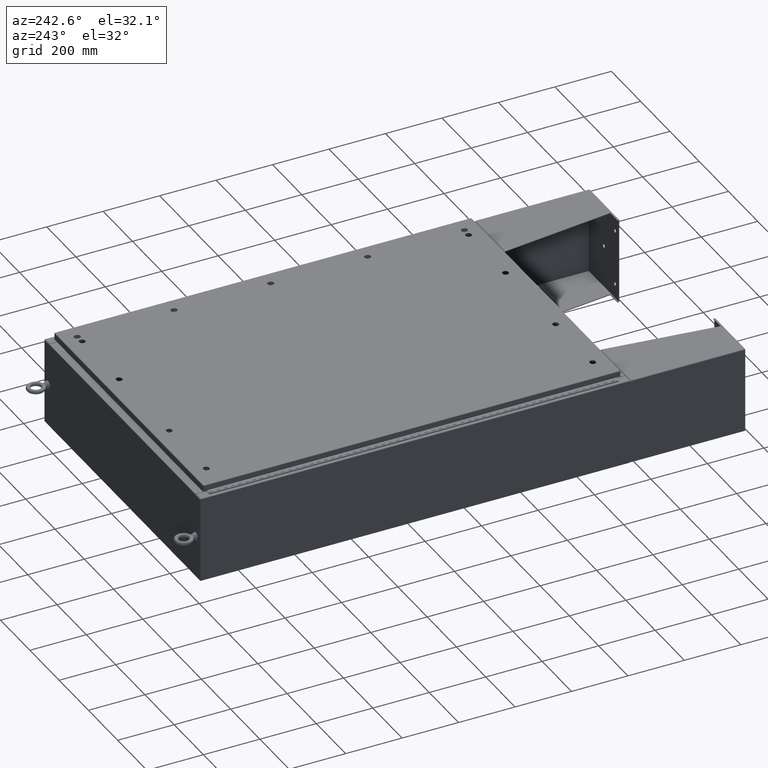
[diagram: clean part render]
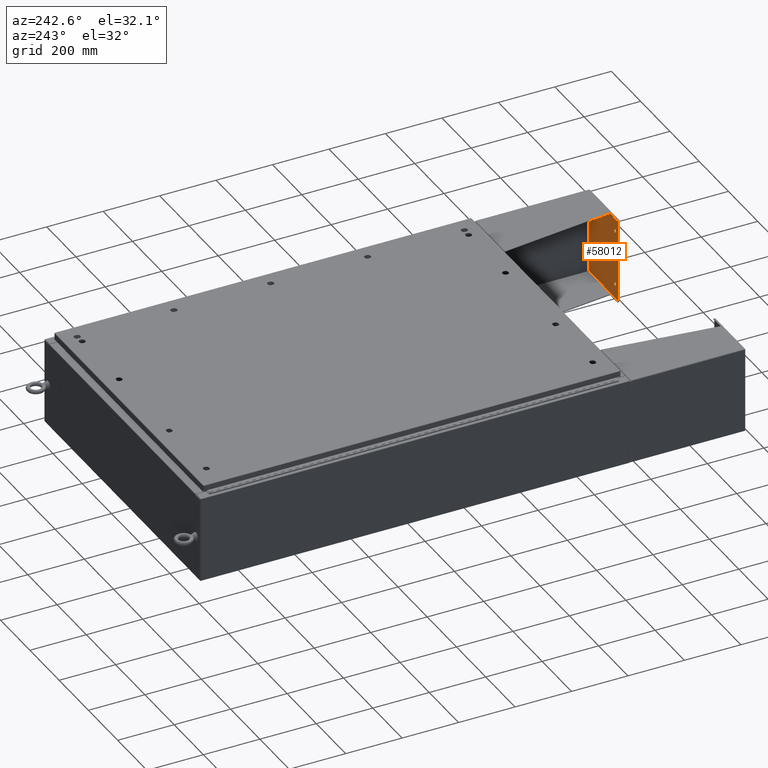
[diagram: same view with one face highlighted and labeled with its STEP entity id]
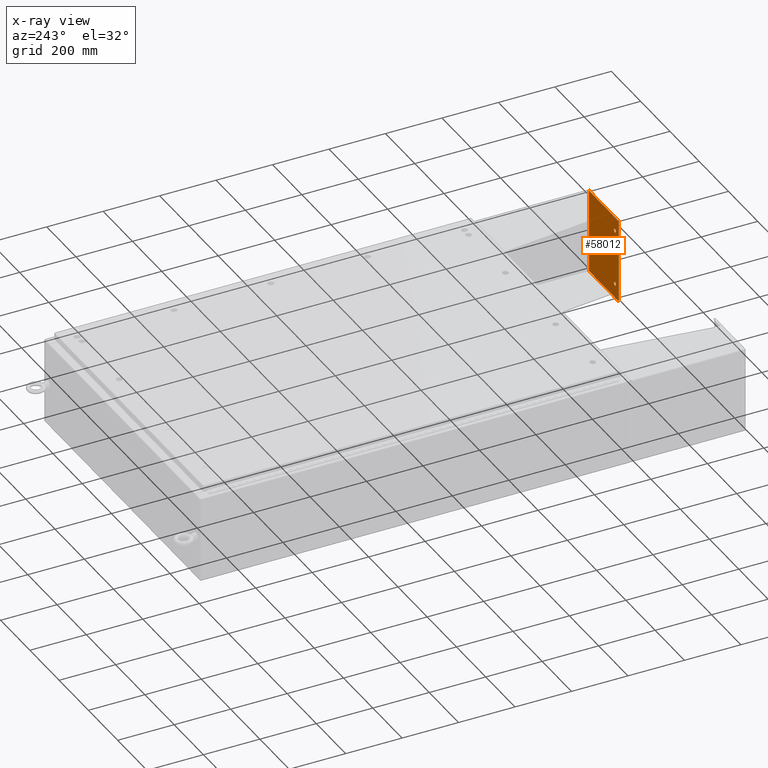
[diagram: x-ray of the same camera — body ghosted, the highlighted face saturated]
A machine part, auxiliary view. The second image highlights one B-rep face of the part: STEP entity #58012.
The next image is the same camera in x-ray: the body ghosted, the highlighted face saturated — about 0% of this face is hidden behind the body in this view.
In plain terms, the highlighted planar face has unit normal (0, -1, 0).
Its self-contained STEP definition (entity closure, byte-faithful):
#577 = DIRECTION ( 'NONE',  ( -1.000000000000000000, -0.0000000000000000000, -0.0000000000000000000 ) ) ;
#1028 = DIRECTION ( 'NONE',  ( 1.000000000000000000, 0.0000000000000000000, 0.0000000000000000000 ) ) ;
#1836 = ORIENTED_EDGE ( 'NONE', *, *, #38341, .T. ) ;
#2141 = ORIENTED_EDGE ( 'NONE', *, *, #55813, .T. ) ;
#4007 = DIRECTION ( 'NONE',  ( 1.000000000000000000, 0.0000000000000000000, 0.0000000000000000000 ) ) ;
#4290 = CARTESIAN_POINT ( 'NONE',  ( 5.878999999999997800, 4.000000000000000000, 0.0000000000000000000 ) ) ;
#5529 = CIRCLE ( 'NONE', #34900, 0.2499999999999998100 ) ;
#6895 = ORIENTED_EDGE ( 'NONE', *, *, #41651, .T. ) ;
#6958 = FACE_BOUND ( 'NONE', #14858, .T. ) ;
#7029 = DIRECTION ( 'NONE',  ( -0.0000000000000000000, -0.0000000000000000000, -1.000000000000000000 ) ) ;
#7469 = VECTOR ( 'NONE', #577, 39.37007874015748100 ) ;
#8609 = ORIENTED_EDGE ( 'NONE', *, *, #36759, .F. ) ;
#8724 = VECTOR ( 'NONE', #51157, 39.37007874015748100 ) ;
#9634 = DIRECTION ( 'NONE',  ( 1.000000000000000000, 0.0000000000000000000, 0.0000000000000000000 ) ) ;
#9685 = EDGE_LOOP ( 'NONE', ( #2141, #1836, #24955, #6895 ) ) ;
#10076 = CARTESIAN_POINT ( 'NONE',  ( -5.879000000000000400, 4.000000000000000000, 0.0000000000000000000 ) ) ;
#11567 = CARTESIAN_POINT ( 'NONE',  ( -5.879000000000000400, 4.000000000000000000, 0.0000000000000000000 ) ) ;
#11807 = VERTEX_POINT ( 'NONE', #55497 ) ;
#12425 = AXIS2_PLACEMENT_3D ( 'NONE', #27448, #33040, #24715 ) ;
#12438 = ORIENTED_EDGE ( 'NONE', *, *, #16672, .F. ) ;
#12812 = VERTEX_POINT ( 'NONE', #60976 ) ;
#13379 = CIRCLE ( 'NONE', #57759, 0.2500000000000000000 ) ;
#14085 = DIRECTION ( 'NONE',  ( -1.000000000000000000, 0.0000000000000000000, -0.0000000000000000000 ) ) ;
#14745 = CARTESIAN_POINT ( 'NONE',  ( -5.879000000000000400, -4.000000000000000000, 0.0000000000000000000 ) ) ;
#14799 = DIRECTION ( 'NONE',  ( 0.0000000000000000000, 0.0000000000000000000, 1.000000000000000000 ) ) ;
#14858 = EDGE_LOOP ( 'NONE', ( #8609, #23107 ) ) ;
#15485 = CARTESIAN_POINT ( 'NONE',  ( -3.879000000000000400, -2.999999999999999600, 0.0000000000000000000 ) ) ;
#15745 = LINE ( 'NONE', #19892, #40138 ) ;
#16672 = EDGE_CURVE ( 'NONE', #12812, #45522, #13379, .T. ) ;
#16750 = CARTESIAN_POINT ( 'NONE',  ( 3.629000000000000400, -2.999999999999999600, 0.0000000000000000000 ) ) ;
#17074 = CARTESIAN_POINT ( 'NONE',  ( -5.879000000000000400, -4.000000000000000000, 0.0000000000000000000 ) ) ;
#18790 = CARTESIAN_POINT ( 'NONE',  ( 0.0000000000000000000, 0.0000000000000000000, 0.0000000000000000000 ) ) ;
#19892 = CARTESIAN_POINT ( 'NONE',  ( 5.878999999999997800, -4.000000000000000000, 0.0000000000000000000 ) ) ;
#19927 = DIRECTION ( 'NONE',  ( 0.0000000000000000000, 0.0000000000000000000, 1.000000000000000000 ) ) ;
#19947 = VECTOR ( 'NONE', #1028, 39.37007874015748100 ) ;
#20370 = DIRECTION ( 'NONE',  ( 1.000000000000000000, 0.0000000000000000000, 0.0000000000000000000 ) ) ;
#20377 = CIRCLE ( 'NONE', #12425, 0.2499999999999998100 ) ;
#20397 = LINE ( 'NONE', #10076, #7469 ) ;
#20997 = CARTESIAN_POINT ( 'NONE',  ( -0.2500000000000000000, 3.061616997868383000E-017, 0.0000000000000000000 ) ) ;
#22378 = AXIS2_PLACEMENT_3D ( 'NONE', #15485, #49559, #20370 ) ;
#22804 = CARTESIAN_POINT ( 'NONE',  ( 5.878999999999997800, -4.000000000000000000, 0.0000000000000000000 ) ) ;
#23107 = ORIENTED_EDGE ( 'NONE', *, *, #23930, .F. ) ;
#23624 = CIRCLE ( 'NONE', #22378, 0.2499999999999998100 ) ;
#23930 = EDGE_CURVE ( 'NONE', #35721, #35286, #20377, .T. ) ;
#24414 = ORIENTED_EDGE ( 'NONE', *, *, #61879, .T. ) ;
#24715 = DIRECTION ( 'NONE',  ( 1.000000000000000000, 0.0000000000000000000, 0.0000000000000000000 ) ) ;
#24955 = ORIENTED_EDGE ( 'NONE', *, *, #49835, .T. ) ;
#26296 = DIRECTION ( 'NONE',  ( -0.0000000000000000000, -0.0000000000000000000, -1.000000000000000000 ) ) ;
#26550 = ORIENTED_EDGE ( 'NONE', *, *, #62729, .T. ) ;
#27083 = CARTESIAN_POINT ( 'NONE',  ( -4.129000000000000400, -2.999999999999999600, 0.0000000000000000000 ) ) ;
#27448 = CARTESIAN_POINT ( 'NONE',  ( -3.879000000000000400, -2.999999999999999600, 0.0000000000000000000 ) ) ;
#27778 = EDGE_CURVE ( 'NONE', #45522, #12812, #32713, .T. ) ;
#28176 = EDGE_LOOP ( 'NONE', ( #12438, #58294 ) ) ;
#28625 = CARTESIAN_POINT ( 'NONE',  ( 5.878999999999997800, 4.000000000000000000, 0.0000000000000000000 ) ) ;
#28926 = AXIS2_PLACEMENT_3D ( 'NONE', #18790, #14799, #4007 ) ;
#31529 = VERTEX_POINT ( 'NONE', #49084 ) ;
#32713 = CIRCLE ( 'NONE', #28926, 0.2500000000000000000 ) ;
#32848 = FACE_BOUND ( 'NONE', #28176, .T. ) ;
#33040 = DIRECTION ( 'NONE',  ( 0.0000000000000000000, 0.0000000000000000000, 1.000000000000000000 ) ) ;
#33771 = VERTEX_POINT ( 'NONE', #16750 ) ;
#33840 = CARTESIAN_POINT ( 'NONE',  ( -3.629000000000000400, -2.999999999999999600, 0.0000000000000000000 ) ) ;
#34579 = DIRECTION ( 'NONE',  ( 0.0000000000000000000, 1.000000000000000000, 0.0000000000000000000 ) ) ;
#34900 = AXIS2_PLACEMENT_3D ( 'NONE', #36215, #7029, #41113 ) ;
#35286 = VERTEX_POINT ( 'NONE', #33840 ) ;
#35721 = VERTEX_POINT ( 'NONE', #27083 ) ;
#36215 = CARTESIAN_POINT ( 'NONE',  ( 3.879000000000000400, -2.999999999999999600, 0.0000000000000000000 ) ) ;
#36759 = EDGE_CURVE ( 'NONE', #35286, #35721, #23624, .T. ) ;
#38341 = EDGE_CURVE ( 'NONE', #52518, #49794, #20397, .T. ) ;
#40138 = VECTOR ( 'NONE', #34579, 39.37007874015748100 ) ;
#41113 = DIRECTION ( 'NONE',  ( -1.000000000000000000, 0.0000000000000000000, 0.0000000000000000000 ) ) ;
#41268 = AXIS2_PLACEMENT_3D ( 'NONE', #4290, #43244, #14085 ) ;
#41651 = EDGE_CURVE ( 'NONE', #11807, #60706, #45885, .T. ) ;
#43244 = DIRECTION ( 'NONE',  ( 0.0000000000000000000, 0.0000000000000000000, -1.000000000000000000 ) ) ;
#45522 = VERTEX_POINT ( 'NONE', #20997 ) ;
#45885 = LINE ( 'NONE', #14745, #19947 ) ;
#47580 = LINE ( 'NONE', #17074, #8724 ) ;
#49084 = CARTESIAN_POINT ( 'NONE',  ( 4.129000000000000400, -2.999999999999999600, 0.0000000000000000000 ) ) ;
#49526 = CARTESIAN_POINT ( 'NONE',  ( 0.0000000000000000000, 0.0000000000000000000, 0.0000000000000000000 ) ) ;
#49559 = DIRECTION ( 'NONE',  ( 0.0000000000000000000, 0.0000000000000000000, 1.000000000000000000 ) ) ;
#49794 = VERTEX_POINT ( 'NONE', #11567 ) ;
#49835 = EDGE_CURVE ( 'NONE', #49794, #11807, #47580, .T. ) ;
#51157 = DIRECTION ( 'NONE',  ( -0.0000000000000000000, -1.000000000000000000, -0.0000000000000000000 ) ) ;
#52518 = VERTEX_POINT ( 'NONE', #28625 ) ;
#54118 = AXIS2_PLACEMENT_3D ( 'NONE', #55483, #26296, #60377 ) ;
#54129 = CIRCLE ( 'NONE', #54118, 0.2499999999999998100 ) ;
#55483 = CARTESIAN_POINT ( 'NONE',  ( 3.879000000000000400, -2.999999999999999600, 0.0000000000000000000 ) ) ;
#55497 = CARTESIAN_POINT ( 'NONE',  ( -5.879000000000000400, -4.000000000000000000, 0.0000000000000000000 ) ) ;
#55813 = EDGE_CURVE ( 'NONE', #60706, #52518, #15745, .T. ) ;
#57226 = FACE_BOUND ( 'NONE', #61962, .T. ) ;
#57674 = PLANE ( 'NONE',  #41268 ) ;
#57759 = AXIS2_PLACEMENT_3D ( 'NONE', #49526, #19927, #9634 ) ;
#58012 = ADVANCED_FACE ( 'NONE', ( #58729, #32848, #6958, #57226 ), #57674, .F. ) ;
#58294 = ORIENTED_EDGE ( 'NONE', *, *, #27778, .F. ) ;
#58729 = FACE_OUTER_BOUND ( 'NONE', #9685, .T. ) ;
#60377 = DIRECTION ( 'NONE',  ( -1.000000000000000000, 0.0000000000000000000, 0.0000000000000000000 ) ) ;
#60706 = VERTEX_POINT ( 'NONE', #22804 ) ;
#60976 = CARTESIAN_POINT ( 'NONE',  ( 0.2500000000000000000, 0.0000000000000000000, 0.0000000000000000000 ) ) ;
#61879 = EDGE_CURVE ( 'NONE', #31529, #33771, #5529, .T. ) ;
#61962 = EDGE_LOOP ( 'NONE', ( #24414, #26550 ) ) ;
#62729 = EDGE_CURVE ( 'NONE', #33771, #31529, #54129, .T. ) ;